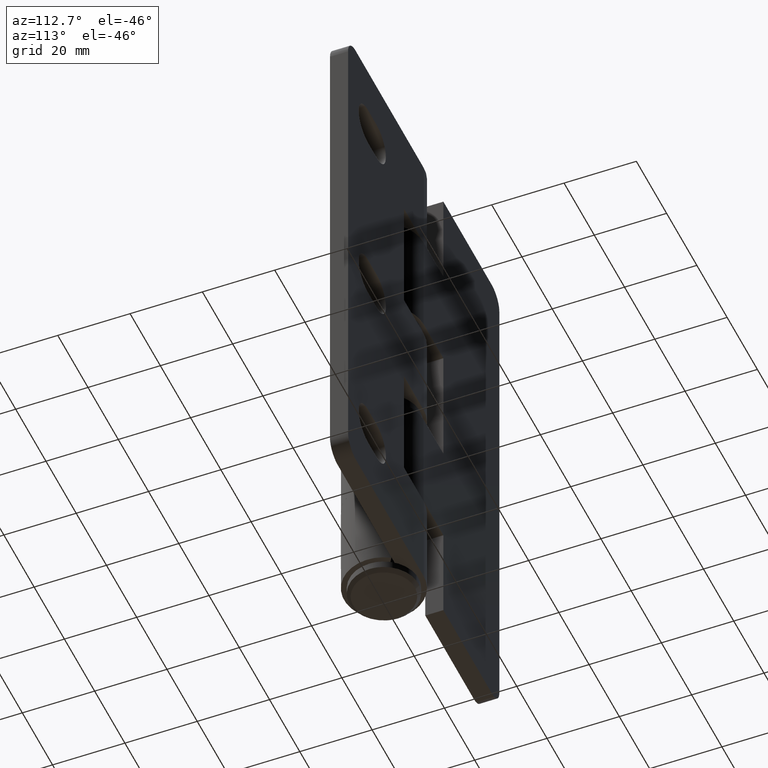
[diagram: clean part render]
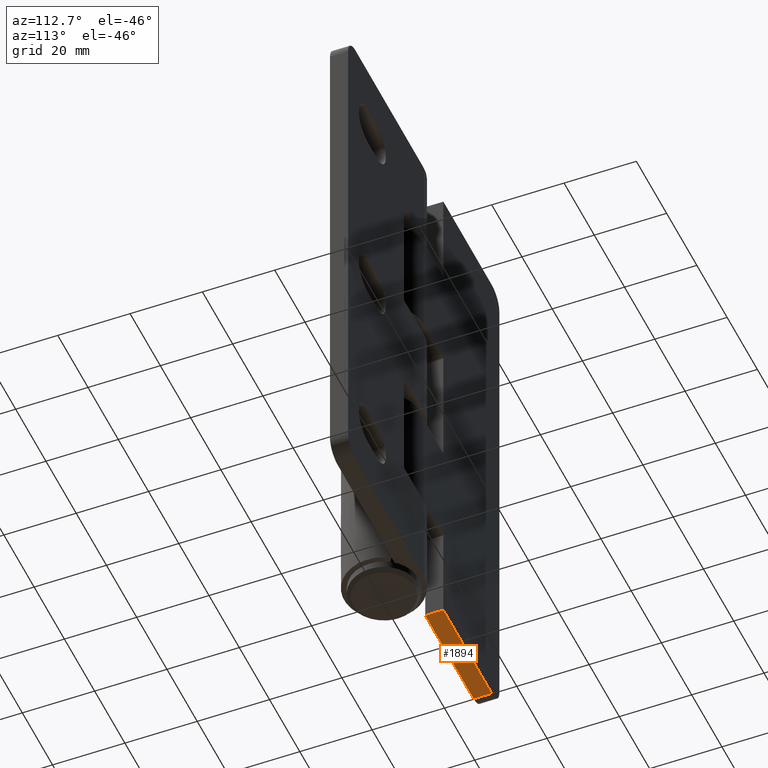
[diagram: same view with one face highlighted and labeled with its STEP entity id]
A machine part, auxiliary view. The second image highlights one B-rep face of the part: STEP entity #1894.
In plain terms, the highlighted face is a freeform B-spline surface patch.
Its self-contained STEP definition (entity closure, byte-faithful):
#1632=CARTESIAN_POINT('',(-13.0,6.0,0.0));
#1633=VERTEX_POINT('',#1632);
#1634=CARTESIAN_POINT('',(-13.0,11.0,0.0));
#1635=VERTEX_POINT('',#1634);
#1636=CARTESIAN_POINT('',(-13.0,6.0,0.0));
#1637=CARTESIAN_POINT('',(-13.0,11.0,0.0));
#1638=QUASI_UNIFORM_CURVE('',1,(#1636,#1637),.UNSPECIFIED.,.F.,.U.);
#1639=EDGE_CURVE('',#1633,#1635,#1638,.T.);
#1749=CARTESIAN_POINT('',(-45.0,6.0,0.0));
#1750=VERTEX_POINT('',#1749);
#1771=CARTESIAN_POINT('',(-45.0,11.0,0.0));
#1772=VERTEX_POINT('',#1771);
#1786=CARTESIAN_POINT('',(-45.0,6.0,0.0));
#1787=CARTESIAN_POINT('',(-45.0,11.0,0.0));
#1788=QUASI_UNIFORM_CURVE('',1,(#1786,#1787),.UNSPECIFIED.,.F.,.U.);
#1789=EDGE_CURVE('',#1750,#1772,#1788,.T.);
#1875=CARTESIAN_POINT('',(-46.598399937977788,5.750250009690968,0.0));
#1876=CARTESIAN_POINT('',(-11.401599203715330,5.750250009690968,0.0));
#1877=CARTESIAN_POINT('',(-46.598399937977788,11.249750124419480,0.0));
#1878=CARTESIAN_POINT('',(-11.401599203715330,11.249750124419480,0.0));
#1879=B_SPLINE_SURFACE_WITH_KNOTS('',1,1,((#1875,#1877),(#1876,#1878)),.UNSPECIFIED.,.F.,.F.,.U.,(2,2),(2,2),(0.0,35.196800734262467),(0.0,5.499500114728511),.UNSPECIFIED.);
#1880=CARTESIAN_POINT('',(-45.0,11.0,0.0));
#1881=CARTESIAN_POINT('',(-13.0,11.0,0.0));
#1882=QUASI_UNIFORM_CURVE('',1,(#1880,#1881),.UNSPECIFIED.,.F.,.U.);
#1883=EDGE_CURVE('',#1772,#1635,#1882,.T.);
#1884=ORIENTED_EDGE('',*,*,#1883,.T.);
#1885=ORIENTED_EDGE('',*,*,#1639,.F.);
#1886=CARTESIAN_POINT('',(-13.0,6.0,0.0));
#1887=CARTESIAN_POINT('',(-45.0,6.0,0.0));
#1888=QUASI_UNIFORM_CURVE('',1,(#1886,#1887),.UNSPECIFIED.,.F.,.U.);
#1889=EDGE_CURVE('',#1633,#1750,#1888,.T.);
#1890=ORIENTED_EDGE('',*,*,#1889,.T.);
#1891=ORIENTED_EDGE('',*,*,#1789,.T.);
#1892=EDGE_LOOP('',(#1884,#1885,#1890,#1891));
#1893=FACE_OUTER_BOUND('',#1892,.T.);
#1894=ADVANCED_FACE('',(#1893),#1879,.F.);